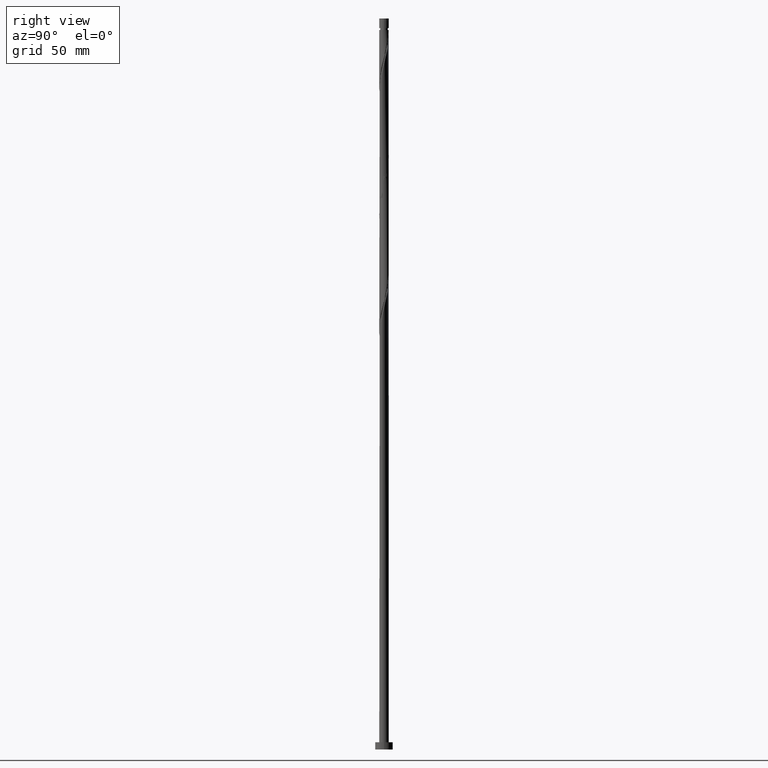
[diagram: clean part render]
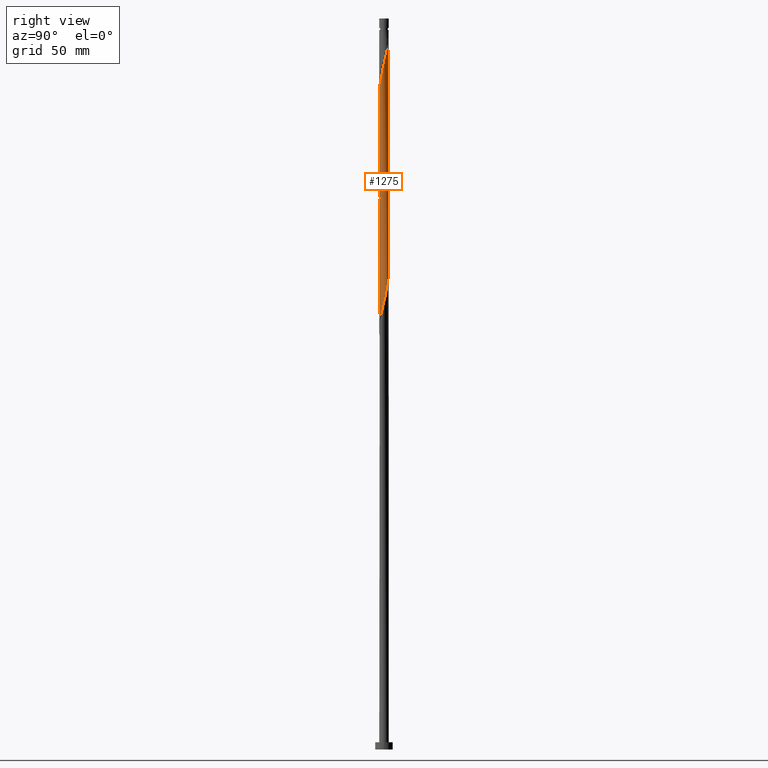
[diagram: same view with one face highlighted and labeled with its STEP entity id]
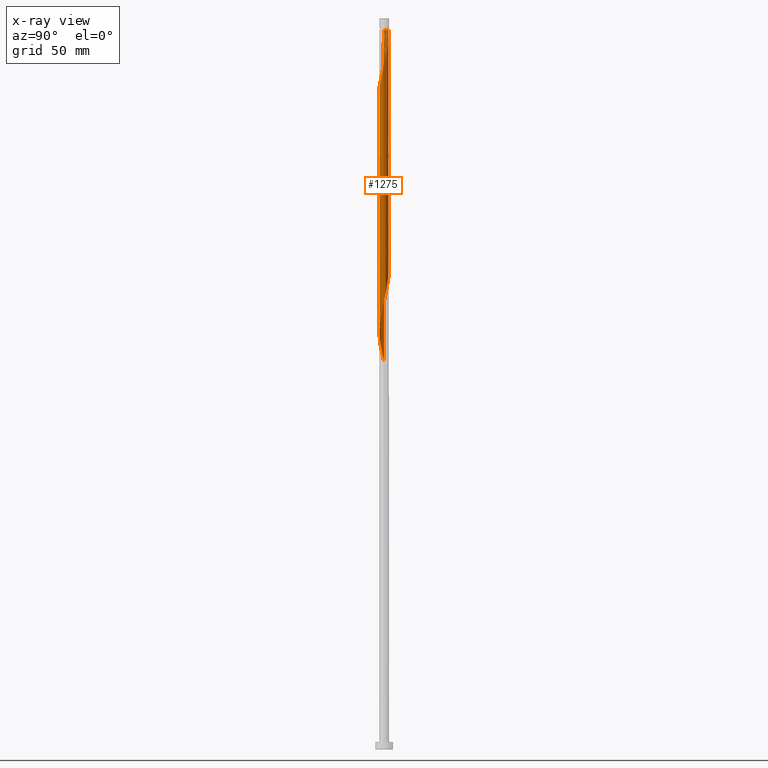
[diagram: x-ray of the same camera — body ghosted, the highlighted face saturated]
A machine part, right view. The second image highlights one B-rep face of the part: STEP entity #1275.
The next image is the same camera in x-ray: the body ghosted, the highlighted face saturated — about 0% of this face is hidden behind the body in this view.
In plain terms, the highlighted cylindrical surface (bore or boss wall) has radius 3.25 mm, axis along (-0, -0, -1).
Its self-contained STEP definition (entity closure, byte-faithful):
#2 = EDGE_CURVE ( 'NONE', #840, #1743, #1157, .T. ) ;
#30 = CARTESIAN_POINT ( 'NONE',  ( -0.3071423234190662210, 3.251249870675653408, 412.7072714568894867 ) ) ;
#40 = CARTESIAN_POINT ( 'NONE',  ( -3.184999999999998277, 0.6467418341193081899, 429.6343547902229147 ) ) ;
#60 = CARTESIAN_POINT ( 'NONE',  ( -3.249974190763924575, 0.01295219550383701346, 432.2385214568894867 ) ) ;
#67 = CARTESIAN_POINT ( 'NONE',  ( -3.249974190763924575, 0.01295219550383701346, 348.9051881235562860 ) ) ;
#72 = CARTESIAN_POINT ( 'NONE',  ( 0.9604369538118756600, 3.121301489147801256, 407.4989381235562860 ) ) ;
#73 = CARTESIAN_POINT ( 'NONE',  ( -2.997628045404656216, -1.255677546746574391, 432.2385214568895435 ) ) ;
#75 = EDGE_CURVE ( 'NONE', #952, #529, #401, .T. ) ;
#85 = CARTESIAN_POINT ( 'NONE',  ( 0.6467418341193088560, 3.184999999999998277, 325.4676881235562291 ) ) ;
#96 = CARTESIAN_POINT ( 'NONE',  ( 2.886224932046606906, 1.527961966161551111, 313.7489381235562291 ) ) ;
#100 = EDGE_CURVE ( 'NONE', #1021, #1805, #393, .T. ) ;
#110 = CARTESIAN_POINT ( 'NONE',  ( 3.007541226668794199, 1.231745010092412995, 312.4468547902228011 ) ) ;
#115 = CARTESIAN_POINT ( 'NONE',  ( 2.709450634661944690, -1.794819561496368898, 460.8843547902229147 ) ) ;
#125 =( BOUNDED_CURVE ( )  B_SPLINE_CURVE ( 2, ( #177, #333, #1281, #797, #1242, #1424, #1587, #1858, #214, #490, #368, #649, #1894, #943, #1873, #1754, #1734, #1415, #357, #1558, #498, #815, #667, #1099, #1269, #1884, #1722, #973, #548, #1023, #224, #1443, #1928, #566, #67, #1779, #687, #1139, #1149, #1160, #1761, #386, #1003, #1608, #395, #1639, #1617, #712, #403, #262, #852, #1462, #85, #1920, #1013, #1628, #1787, #253, #860, #414, #1471, #96, #110, #1328, #144, #1968, #1338, #1188, #1221, #923, #1197, #1656, #610, #742, #1678, #1082, #1431, #961, #1711, #343, #1119, #211, #951, #1742, #1566, #1855, #203, #321, #811, #194, #793, #781, #1096, #486, #1846, #330, #1238, #1421, #1393 ),
 .UNSPECIFIED., .F., .T. ) 
 B_SPLINE_CURVE_WITH_KNOTS ( ( 3, 2, 2, 2, 2, 2, 2, 2, 2, 2, 2, 2, 2, 2, 2, 2, 2, 2, 2, 2, 2, 2, 2, 2, 2, 2, 2, 2, 2, 2, 2, 2, 2, 2, 2, 2, 2, 2, 2, 2, 2, 2, 2, 2, 2, 2, 2, 2, 2, 3 ),
 ( 0.5545286902180870392, 0.5546875000000000000, 0.5625000000000000000, 0.5703125000000000000, 0.5781250000000000000, 0.5859375000000000000, 0.5937500000000000000, 0.6015625000000000000, 0.6093750000000000000, 0.6171875000000000000, 0.6250000000000000000, 0.6328125000000000000, 0.6406250000000000000, 0.6484375000000000000, 0.6562500000000000000, 0.6640625000000000000, 0.6718750000000000000, 0.6796875000000000000, 0.6875000000000000000, 0.6953125000000000000, 0.7031250000000000000, 0.7109375000000000000, 0.7187500000000000000, 0.7265625000000000000, 0.7343750000000000000, 0.7421875000000000000, 0.7500000000000000000, 0.7578125000000000000, 0.7656250000000000000, 0.7734375000000000000, 0.7812500000000000000, 0.7890625000000000000, 0.7968750000000000000, 0.8046875000000000000, 0.8125000000000000000, 0.8203125000000000000, 0.8281250000000000000, 0.8359375000000000000, 0.8437500000000000000, 0.8515625000000000000, 0.8593750000000000000, 0.8671875000000000000, 0.8750000000000000000, 0.8828125000000000000, 0.8906250000000000000, 0.8984375000000000000, 0.9062500000000000000, 0.9140625000000000000, 0.9218750000000000000, 0.9295286902180871502 ),
 .UNSPECIFIED. ) 
 CURVE ( )  GEOMETRIC_REPRESENTATION_ITEM ( )  RATIONAL_B_SPLINE_CURVE ( ( 0.9089165573359709871, 0.9090019243628758572, 0.9090909090909677914, 0.9047133878838736765, 0.9090909090909677914, 0.9047133878838736765, 0.9090909090909677914, 0.9047133878838736765, 0.9090909090909677914, 0.9047133878838736765, 0.9090909090909677914, 0.9047133878838736765, 0.9090909090909677914, 0.9047133878838736765, 0.9090909090909677914, 0.9047133878838736765, 0.9090909090909677914, 0.9047133878838736765, 0.9090909090909677914, 0.9047133878838736765, 0.9090909090909677914, 0.9047133878838736765, 0.9090909090909677914, 0.9047133878838736765, 0.9090909090909677914, 0.9047133878838736765, 0.9090909090909677914, 0.9047133878838736765, 0.9090909090909677914, 0.9047133878838736765, 0.9090909090909677914, 0.9047133878838736765, 0.9090909090909677914, 0.9047133878838736765, 0.9090909090909677914, 0.9047133878838736765, 0.9090909090909677914, 0.9047133878838736765, 0.9090909090909677914, 0.9047133878838736765, 0.9090909090909677914, 0.9047133878838736765, 0.9090909090909677914, 0.9047133878838736765, 0.9090909090909677914, 0.9047133878838736765, 0.9090909090909677914, 0.9047133878838736765, 0.9090909090909677914, 0.9047133878838736765, 0.9090909090909677914, 0.9047133878838736765, 0.9090909090909677914, 0.9047133878838736765, 0.9090909090909677914, 0.9047133878838736765, 0.9090909090909677914, 0.9047133878838736765, 0.9090909090909677914, 0.9047133878838736765, 0.9090909090909677914, 0.9047133878838736765, 0.9090909090909677914, 0.9047133878838736765, 0.9090909090909677914, 0.9047133878838736765, 0.9090909090909677914, 0.9047133878838736765, 0.9090909090909677914, 0.9047133878838736765, 0.9090909090909677914, 0.9047133878838736765, 0.9090909090909677914, 0.9047133878838736765, 0.9090909090909677914, 0.9047133878838736765, 0.9090909090909677914, 0.9047133878838736765, 0.9090909090909677914, 0.9047133878838736765, 0.9090909090909677914, 0.9047133878838736765, 0.9090909090909677914, 0.9047133878838736765, 0.9090909090909677914, 0.9047133878838736765, 0.9090909090909677914, 0.9047133878838736765, 0.9090909090909677914, 0.9047133878838736765, 0.9090909090909677914, 0.9047133878838736765, 0.9090909090909677914, 0.9047133878838736765, 0.9090909090909677914, 0.9047133878838736765, 0.9090909090909677914, 0.9048023726119654997, 0.9089165573359710981 ) ) 
 REPRESENTATION_ITEM ( '' )  );
#128 = CARTESIAN_POINT ( 'NONE',  ( 2.997628045404655328, 1.255677546746574613, 473.9051881235561154 ) ) ;
#138 = CARTESIAN_POINT ( 'NONE',  ( 1.231745010092417214, 3.007541226668799528, 484.3218547902228579 ) ) ;
#144 = CARTESIAN_POINT ( 'NONE',  ( 3.190053695983316562, 0.6213351887211725488, 309.8426881235563997 ) ) ;
#177 = CARTESIAN_POINT ( 'NONE',  ( 3.250000000000000000, 2.786425763563463458E-16, 390.6245517682197601 ) ) ;
#194 = CARTESIAN_POINT ( 'NONE',  ( -2.081798411207627986, -2.516163250565653708, 277.2906047902229147 ) ) ;
#203 = CARTESIAN_POINT ( 'NONE',  ( -1.255677546746574169, -2.997628045404650443, 281.1968547902229716 ) ) ;
#208 = CARTESIAN_POINT ( 'NONE',  ( -3.250000000000000000, 1.108978815598836682E-16, 432.2912184348865026 ) ) ;
#211 = CARTESIAN_POINT ( 'NONE',  ( 0.3071423234190654439, -3.251249870675654297, 287.7072714568894298 ) ) ;
#214 = CARTESIAN_POINT ( 'NONE',  ( 2.695058926113575115, -1.816358275444450054, 382.7593547902229716 ) ) ;
#224 = CARTESIAN_POINT ( 'NONE',  ( -3.007541226668793755, -1.231745010092413217, 354.1135214568896572 ) ) ;
#238 = DIRECTION ( 'NONE',  ( -0.000000000000000000, -0.000000000000000000, -1.000000000000000000 ) ) ;
#239 = CARTESIAN_POINT ( 'NONE',  ( -3.250000000000004885, 9.719873148483848127E-16, 426.9774911455594975 ) ) ;
#242 = DIRECTION ( 'NONE',  ( -0.000000000000000000, -0.000000000000000000, -1.000000000000000000 ) ) ;
#253 = CARTESIAN_POINT ( 'NONE',  ( 2.081798411207627986, 2.516163250565652820, 318.9572714568897140 ) ) ;
#260 = EDGE_LOOP ( 'NONE', ( #1864, #1422, #420, #1926, #1679, #754, #823, #1556 ) ) ;
#262 = CARTESIAN_POINT ( 'NONE',  ( -0.3071423234190662210, 3.251249870675653408, 329.3739381235562860 ) ) ;
#275 = FACE_OUTER_BOUND ( 'NONE', #260, .T. ) ;
#287 = CARTESIAN_POINT ( 'NONE',  ( 0.3071423234190679419, 3.251249870675660070, 488.2281047902229147 ) ) ;
#297 = CARTESIAN_POINT ( 'NONE',  ( 3.190053695983322335, -0.6213351887211754354, 466.0926881235561154 ) ) ;
#321 = CARTESIAN_POINT ( 'NONE',  ( -1.550918139681270569, -2.873954601661498742, 279.8947714568896572 ) ) ;
#330 = CARTESIAN_POINT ( 'NONE',  ( -3.128857521290980603, -0.9355280540232776554, 269.4781047902229716 ) ) ;
#333 = CARTESIAN_POINT ( 'NONE',  ( 3.249999999999999556, -0.006476123466344306349, 390.5981982137025170 ) ) ;
#338 = CARTESIAN_POINT ( 'NONE',  ( 3.250000000000000000, 2.786425763563463458E-16, 390.6245517682197601 ) ) ;
#343 = CARTESIAN_POINT ( 'NONE',  ( 0.9355280540232774333, -3.128857521290980603, 290.3114381235563428 ) ) ;
#357 = CARTESIAN_POINT ( 'NONE',  ( -0.01295219550383648090, -3.249974190763924575, 369.7385214568895435 ) ) ;
#360 = CARTESIAN_POINT ( 'NONE',  ( -2.873954601661499186, 1.550918139681270347, 425.7281047902229147 ) ) ;
#368 = CARTESIAN_POINT ( 'NONE',  ( 2.288920203698416422, -2.307237374242450123, 380.1551881235562860 ) ) ;
#372 = CARTESIAN_POINT ( 'NONE',  ( 0.6467418341193081899, -3.185000000000003606, 450.4676881235562860 ) ) ;
#386 = CARTESIAN_POINT ( 'NONE',  ( -2.516163250565653708, 2.081798411207627986, 339.7906047902228011 ) ) ;
#388 = VECTOR ( 'NONE', #1615, 1000.000000000000000 ) ;
#393 = LINE ( 'NONE', #1001, #1860 ) ;
#395 = CARTESIAN_POINT ( 'NONE',  ( -1.794819561496365123, 2.709450634661940693, 335.8843547902228579 ) ) ;
#401 = LINE ( 'NONE', #1770, #1544 ) ;
#403 = CARTESIAN_POINT ( 'NONE',  ( -0.6213351887211718827, 3.190053695983317006, 330.6760214568895435 ) ) ;
#414 = CARTESIAN_POINT ( 'NONE',  ( 2.532676337277275369, 2.061677156831177804, 316.3531047902229716 ) ) ;
#420 = ORIENTED_EDGE ( 'NONE', *, *, #527, .F. ) ;
#438 = CARTESIAN_POINT ( 'NONE',  ( 2.081798411207630206, -2.516163250565659038, 456.9781047902229147 ) ) ;
#448 = CARTESIAN_POINT ( 'NONE',  ( 3.250000000000000000, 2.786425763563463458E-16, 390.6245517682197601 ) ) ;
#479 = AXIS2_PLACEMENT_3D ( 'NONE', #1611, #238, #845 ) ;
#486 = CARTESIAN_POINT ( 'NONE',  ( -2.886224932046607794, -1.527961966161550889, 272.0822714568896004 ) ) ;
#490 = CARTESIAN_POINT ( 'NONE',  ( 2.516163250565652820, -2.081798411207627986, 381.4572714568895435 ) ) ;
#498 = CARTESIAN_POINT ( 'NONE',  ( -0.6467418341193085229, -3.184999999999998277, 367.1343547902228579 ) ) ;
#503 = CARTESIAN_POINT ( 'NONE',  ( -3.249999999999999112, 0.006476123466342445859, 432.2648648803691458 ) ) ;
#512 = DIRECTION ( 'NONE',  ( -0.000000000000000000, -0.000000000000000000, -1.000000000000000000 ) ) ;
#527 = EDGE_CURVE ( 'NONE', #1021, #674, #1647, .T. ) ;
#529 = VERTEX_POINT ( 'NONE', #448 ) ;
#533 = CARTESIAN_POINT ( 'NONE',  ( 0.3330467144267399981, 3.248698510852195298, 410.1031047902229147 ) ) ;
#542 = CARTESIAN_POINT ( 'NONE',  ( 3.190053695983316562, 0.6213351887211725488, 393.1760214568895435 ) ) ;
#548 = CARTESIAN_POINT ( 'NONE',  ( -2.709450634661940693, -1.794819561496364679, 356.7176881235562860 ) ) ;
#555 = CARTESIAN_POINT ( 'NONE',  ( -0.6213351887211736591, -3.190053695983322779, 445.2593547902229147 ) ) ;
#566 = CARTESIAN_POINT ( 'NONE',  ( -3.251249870675654297, -0.3071423234190656104, 350.2072714568896572 ) ) ;
#573 = CARTESIAN_POINT ( 'NONE',  ( 0.6213351887211757685, 3.190053695983322335, 486.9260214568896004 ) ) ;
#581 = CARTESIAN_POINT ( 'NONE',  ( 3.251249870675660070, -0.3071423234190678309, 467.3947714568896004 ) ) ;
#592 = CARTESIAN_POINT ( 'NONE',  ( 2.061677156831182245, 2.532676337277277590, 480.4156047902229147 ) ) ;
#604 = CARTESIAN_POINT ( 'NONE',  ( 0.9355280540232803199, 3.128857521290985932, 485.6239381235562291 ) ) ;
#610 = CARTESIAN_POINT ( 'NONE',  ( 2.695058926113575115, -1.816358275444450054, 299.4260214568895435 ) ) ;
#649 = CARTESIAN_POINT ( 'NONE',  ( 2.061677156831178248, -2.532676337277275369, 378.8531047902228579 ) ) ;
#652 = CARTESIAN_POINT ( 'NONE',  ( 0.01295219550383680182, 3.249974190763924575, 411.4051881235561723 ) ) ;
#667 = CARTESIAN_POINT ( 'NONE',  ( -1.255677546746574169, -2.997628045404650443, 364.5301881235561723 ) ) ;
#671 = CARTESIAN_POINT ( 'NONE',  ( 1.550918139681270791, 2.873954601661498742, 404.8947714568896572 ) ) ;
#674 = VERTEX_POINT ( 'NONE', #1930 ) ;
#681 = CARTESIAN_POINT ( 'NONE',  ( -2.288920203698416422, 2.307237374242450123, 421.8218547902229716 ) ) ;
#687 = CARTESIAN_POINT ( 'NONE',  ( -3.184999999999998277, 0.6467418341193081899, 346.3010214568896004 ) ) ;
#690 = CARTESIAN_POINT ( 'NONE',  ( 1.816358275444450276, 2.695058926113575115, 403.5926881235562860 ) ) ;
#699 = CARTESIAN_POINT ( 'NONE',  ( -1.527961966161554663, -2.886224932046612679, 441.3531047902229716 ) ) ;
#712 = CARTESIAN_POINT ( 'NONE',  ( -0.9355280540232774333, 3.128857521290980603, 331.9781047902229716 ) ) ;
#716 = CARTESIAN_POINT ( 'NONE',  ( -1.794819561496368454, -2.709450634661944690, 440.0510214568896572 ) ) ;
#725 = CARTESIAN_POINT ( 'NONE',  ( 3.007541226668799528, -1.231745010092417214, 463.4885214568895435 ) ) ;
#734 = CARTESIAN_POINT ( 'NONE',  ( 2.873954601661504071, 1.550918139681272123, 475.2072714568896004 ) ) ;
#742 = CARTESIAN_POINT ( 'NONE',  ( 2.516163250565652820, -2.081798411207627986, 298.1239381235563428 ) ) ;
#754 = ORIENTED_EDGE ( 'NONE', *, *, #75, .F. ) ;
#766 = CARTESIAN_POINT ( 'NONE',  ( 3.250000000000000444, 3.980102097228898231E-16, 492.1343547902229147 ) ) ;
#781 = CARTESIAN_POINT ( 'NONE',  ( -2.532676337277274481, -2.061677156831178692, 274.6864381235562860 ) ) ;
#793 = CARTESIAN_POINT ( 'NONE',  ( -2.307237374242450123, -2.288920203698416866, 275.9885214568895435 ) ) ;
#797 = CARTESIAN_POINT ( 'NONE',  ( 3.248698510852195298, -0.3330467144267416635, 389.2697714568895435 ) ) ;
#808 = CARTESIAN_POINT ( 'NONE',  ( 2.886224932046606906, 1.527961966161551111, 397.0822714568895435 ) ) ;
#811 = CARTESIAN_POINT ( 'NONE',  ( -1.816358275444448944, -2.695058926113576003, 278.5926881235562860 ) ) ;
#815 = CARTESIAN_POINT ( 'NONE',  ( -0.9604369538118765481, -3.121301489147800368, 365.8322714568894867 ) ) ;
#818 = CARTESIAN_POINT ( 'NONE',  ( -0.9355280540232774333, 3.128857521290980603, 415.3114381235562291 ) ) ;
#823 = ORIENTED_EDGE ( 'NONE', *, *, #75, .T. ) ;
#831 = AXIS2_PLACEMENT_3D ( 'NONE', #1878, #512, #1115 ) ;
#835 = CARTESIAN_POINT ( 'NONE',  ( -2.997628045404650443, 1.255677546746573281, 427.0301881235562860 ) ) ;
#840 = VERTEX_POINT ( 'NONE', #1958 ) ;
#845 = DIRECTION ( 'NONE',  ( -1.000000000000000000, 0.000000000000000000, 0.000000000000000000 ) ) ;
#852 = CARTESIAN_POINT ( 'NONE',  ( 0.01295219550383680182, 3.249974190763924575, 328.0718547902228579 ) ) ;
#860 = CARTESIAN_POINT ( 'NONE',  ( 2.307237374242450123, 2.288920203698416422, 317.6551881235562860 ) ) ;
#865 = CARTESIAN_POINT ( 'NONE',  ( -3.121301489147807917, -0.9604369538118774363, 430.9364381235562291 ) ) ;
#868 = DIRECTION ( 'NONE',  ( -0.000000000000000000, -0.000000000000000000, -1.000000000000000000 ) ) ;
#886 = CARTESIAN_POINT ( 'NONE',  ( 2.886224932046612235, -1.527961966161555774, 462.1864381235562860 ) ) ;
#899 = CARTESIAN_POINT ( 'NONE',  ( -0.01295219550383478260, 3.249974190763929904, 489.5301881235562291 ) ) ;
#923 = CARTESIAN_POINT ( 'NONE',  ( 3.121301489147801256, -0.9604369538118754379, 303.3322714568895435 ) ) ;
#941 =( BOUNDED_CURVE ( )  B_SPLINE_CURVE ( 2, ( #208, #503, #60, #1407, #40, #1738, #835, #360, #1572, #1562, #681, #1285, #1908, #1262, #1600, #818, #1898, #30, #652, #533, #1446, #72, #1427, #671, #690, #1254, #1135, #1273, #1757, #808, #1297, #1727, #542, #1887, #338 ),
 .UNSPECIFIED., .F., .T. ) 
 B_SPLINE_CURVE_WITH_KNOTS ( ( 3, 2, 2, 2, 2, 2, 2, 2, 2, 2, 2, 2, 2, 2, 2, 2, 2, 3 ),
 ( 0.4295286902180869837, 0.4296875000000000000, 0.4375000000000000000, 0.4453125000000000000, 0.4531250000000000000, 0.4609375000000000000, 0.4687500000000000000, 0.4765625000000000000, 0.4843750000000000000, 0.4921875000000000000, 0.5000000000000000000, 0.5078125000000000000, 0.5156250000000000000, 0.5234375000000000000, 0.5312500000000000000, 0.5390625000000000000, 0.5468750000000000000, 0.5545286902180870392 ),
 .UNSPECIFIED. ) 
 CURVE ( )  GEOMETRIC_REPRESENTATION_ITEM ( )  RATIONAL_B_SPLINE_CURVE ( ( 0.9089165573359709871, 0.9090019243628758572, 0.9090909090909677914, 0.9047133878838736765, 0.9090909090909677914, 0.9047133878838736765, 0.9090909090909677914, 0.9047133878838736765, 0.9090909090909677914, 0.9047133878838736765, 0.9090909090909677914, 0.9047133878838736765, 0.9090909090909677914, 0.9047133878838736765, 0.9090909090909677914, 0.9047133878838736765, 0.9090909090909677914, 0.9047133878838736765, 0.9090909090909677914, 0.9047133878838736765, 0.9090909090909677914, 0.9047133878838736765, 0.9090909090909677914, 0.9047133878838736765, 0.9090909090909677914, 0.9047133878838736765, 0.9090909090909677914, 0.9047133878838736765, 0.9090909090909677914, 0.9047133878838736765, 0.9090909090909677914, 0.9047133878838736765, 0.9090909090909677914, 0.9048023726119656107, 0.9089165573359709871 ) ) 
 REPRESENTATION_ITEM ( '' )  );
#943 = CARTESIAN_POINT ( 'NONE',  ( 1.527961966161550222, -2.886224932046607794, 376.2489381235562860 ) ) ;
#951 = CARTESIAN_POINT ( 'NONE',  ( -0.01295219550383648090, -3.249974190763924575, 286.4051881235562291 ) ) ;
#952 = VERTEX_POINT ( 'NONE', #766 ) ;
#961 = CARTESIAN_POINT ( 'NONE',  ( 1.527961966161550222, -2.886224932046607794, 292.9156047902229147 ) ) ;
#973 = CARTESIAN_POINT ( 'NONE',  ( -2.532676337277274481, -2.061677156831178692, 358.0197714568896004 ) ) ;
#976 = CARTESIAN_POINT ( 'NONE',  ( 0.9604369538118772143, -3.121301489147807917, 451.7697714568897140 ) ) ;
#996 = CARTESIAN_POINT ( 'NONE',  ( -2.288920203698420863, -2.307237374242452788, 437.4468547902229716 ) ) ;
#1001 = CARTESIAN_POINT ( 'NONE',  ( -3.250000000000000444, 0.000000000000000000, 500.0000000000000000 ) ) ;
#1003 = CARTESIAN_POINT ( 'NONE',  ( -2.288920203698416422, 2.307237374242450123, 338.4885214568895435 ) ) ;
#1007 = CARTESIAN_POINT ( 'NONE',  ( -2.061677156831183133, -2.532676337277277590, 438.7489381235562860 ) ) ;
#1013 = CARTESIAN_POINT ( 'NONE',  ( 1.255677546746574613, 2.997628045404649555, 322.8635214568895435 ) ) ;
#1021 = VERTEX_POINT ( 'NONE', #1323 ) ;
#1023 = CARTESIAN_POINT ( 'NONE',  ( -2.886224932046607794, -1.527961966161550889, 355.4156047902229147 ) ) ;
#1045 = CARTESIAN_POINT ( 'NONE',  ( 3.248698510852201071, 0.3330467144267406088, 469.9989381235562860 ) ) ;
#1082 = CARTESIAN_POINT ( 'NONE',  ( 2.061677156831178248, -2.532676337277275369, 295.5197714568896004 ) ) ;
#1096 = CARTESIAN_POINT ( 'NONE',  ( -2.709450634661940693, -1.794819561496364679, 273.3843547902229147 ) ) ;
#1099 = CARTESIAN_POINT ( 'NONE',  ( -1.550918139681270569, -2.873954601661498742, 363.2281047902228579 ) ) ;
#1115 = DIRECTION ( 'NONE',  ( -1.000000000000000000, 0.000000000000000000, 0.000000000000000000 ) ) ;
#1119 = CARTESIAN_POINT ( 'NONE',  ( 0.6213351887211716607, -3.190053695983317450, 289.0093547902229147 ) ) ;
#1126 = CARTESIAN_POINT ( 'NONE',  ( 0.3330467144267392210, -3.248698510852201071, 449.1656047902229716 ) ) ;
#1130 = EDGE_CURVE ( 'NONE', #1743, #529, #941, .T. ) ;
#1135 = CARTESIAN_POINT ( 'NONE',  ( 2.307237374242450123, 2.288920203698416422, 400.9885214568896572 ) ) ;
#1139 = CARTESIAN_POINT ( 'NONE',  ( -3.121301489147800368, 0.9604369538118764371, 344.9989381235563428 ) ) ;
#1144 = CARTESIAN_POINT ( 'NONE',  ( -3.248698510852201071, -0.3330467144267394430, 428.3322714568896572 ) ) ;
#1149 = CARTESIAN_POINT ( 'NONE',  ( -2.997628045404650443, 1.255677546746573281, 343.6968547902229147 ) ) ;
#1153 = CARTESIAN_POINT ( 'NONE',  ( -0.3071423234190676088, -3.251249870675660070, 446.5614381235561723 ) ) ;
#1157 = LINE ( 'NONE', #1307, #388 ) ;
#1160 = CARTESIAN_POINT ( 'NONE',  ( -2.873954601661499186, 1.550918139681270347, 342.3947714568896004 ) ) ;
#1172 = CARTESIAN_POINT ( 'NONE',  ( 1.550918139681272345, -2.873954601661504071, 454.3739381235562860 ) ) ;
#1188 = CARTESIAN_POINT ( 'NONE',  ( 3.248698510852195298, -0.3330467144267416635, 305.9364381235562860 ) ) ;
#1193 = CARTESIAN_POINT ( 'NONE',  ( 1.794819561496368898, 2.709450634661944690, 481.7176881235561154 ) ) ;
#1197 = CARTESIAN_POINT ( 'NONE',  ( 2.997628045404649555, -1.255677546746574169, 302.0301881235562860 ) ) ;
#1199 = EDGE_CURVE ( 'NONE', #840, #674, #1706, .T. ) ;
#1204 = CARTESIAN_POINT ( 'NONE',  ( -0.6467418341193960085, 3.185000000000880682, 492.1343547902228579 ) ) ;
#1221 = CARTESIAN_POINT ( 'NONE',  ( 3.184999999999998277, -0.6467418341193088560, 304.6343547902229147 ) ) ;
#1238 = CARTESIAN_POINT ( 'NONE',  ( -3.190053695983317006, -0.6213351887211716607, 268.1760214568895435 ) ) ;
#1242 = CARTESIAN_POINT ( 'NONE',  ( 3.184999999999998277, -0.6467418341193088560, 387.9676881235561723 ) ) ;
#1254 = CARTESIAN_POINT ( 'NONE',  ( 2.081798411207627986, 2.516163250565652820, 402.2906047902228579 ) ) ;
#1262 = CARTESIAN_POINT ( 'NONE',  ( -1.527961966161551111, 2.886224932046607350, 417.9156047902228579 ) ) ;
#1269 = CARTESIAN_POINT ( 'NONE',  ( -1.816358275444448944, -2.695058926113576003, 361.9260214568895435 ) ) ;
#1273 = CARTESIAN_POINT ( 'NONE',  ( 2.532676337277275369, 2.061677156831177804, 399.6864381235562860 ) ) ;
#1275 = ADVANCED_FACE ( 'NONE', ( #275 ), #1496, .T. ) ;
#1281 = CARTESIAN_POINT ( 'NONE',  ( 3.249974190763924575, -0.01295219550383659365, 390.5718547902228579 ) ) ;
#1285 = CARTESIAN_POINT ( 'NONE',  ( -2.061677156831178692, 2.532676337277274481, 420.5197714568895435 ) ) ;
#1297 = CARTESIAN_POINT ( 'NONE',  ( 3.007541226668794199, 1.231745010092412995, 395.7801881235562291 ) ) ;
#1307 = CARTESIAN_POINT ( 'NONE',  ( -3.250000000000000444, 0.000000000000000000, 500.0000000000000000 ) ) ;
#1312 = CARTESIAN_POINT ( 'NONE',  ( -2.516163250565659038, -2.081798411207630206, 436.1447714568896572 ) ) ;
#1320 = CARTESIAN_POINT ( 'NONE',  ( 2.288920203698421307, 2.307237374242452788, 479.1135214568894867 ) ) ;
#1323 = CARTESIAN_POINT ( 'NONE',  ( -3.250000000000004885, 9.719873148483848127E-16, 426.9774911455594975 ) ) ;
#1328 = CARTESIAN_POINT ( 'NONE',  ( 3.128857521290980603, 0.9355280540232772113, 311.1447714568896004 ) ) ;
#1338 = CARTESIAN_POINT ( 'NONE',  ( 3.249974190763924575, -0.01295219550383659365, 307.2385214568896004 ) ) ;
#1346 = CARTESIAN_POINT ( 'NONE',  ( 2.516163250565659038, 2.081798411207630206, 477.8114381235562860 ) ) ;
#1356 = CARTESIAN_POINT ( 'NONE',  ( 3.249974190763929904, 0.01295219550383489189, 468.6968547902228011 ) ) ;
#1393 = CARTESIAN_POINT ( 'NONE',  ( -3.250000000000000000, 1.108978815598836682E-16, 265.6245517682197601 ) ) ;
#1407 = CARTESIAN_POINT ( 'NONE',  ( -3.248698510852195298, 0.3330467144267397761, 430.9364381235562291 ) ) ;
#1415 = CARTESIAN_POINT ( 'NONE',  ( 0.3071423234190654439, -3.251249870675654297, 371.0406047902229716 ) ) ;
#1421 = CARTESIAN_POINT ( 'NONE',  ( -3.250000000000000000, -0.3135593985191882371, 266.9005318736358845 ) ) ;
#1422 = ORIENTED_EDGE ( 'NONE', *, *, #1199, .T. ) ;
#1424 = CARTESIAN_POINT ( 'NONE',  ( 3.121301489147801256, -0.9604369538118754379, 386.6656047902229716 ) ) ;
#1427 = CARTESIAN_POINT ( 'NONE',  ( 1.255677546746574613, 2.997628045404649555, 406.1968547902229716 ) ) ;
#1431 = CARTESIAN_POINT ( 'NONE',  ( 1.794819561496364457, -2.709450634661941137, 294.2176881235562291 ) ) ;
#1443 = CARTESIAN_POINT ( 'NONE',  ( -3.128857521290980603, -0.9355280540232776554, 352.8114381235563428 ) ) ;
#1446 = CARTESIAN_POINT ( 'NONE',  ( 0.6467418341193088560, 3.184999999999998277, 408.8010214568895435 ) ) ;
#1456 = CARTESIAN_POINT ( 'NONE',  ( -3.249974190763930348, -0.01295219550383595354, 427.0301881235563428 ) ) ;
#1462 = CARTESIAN_POINT ( 'NONE',  ( 0.3330467144267399981, 3.248698510852195298, 326.7697714568896004 ) ) ;
#1471 = CARTESIAN_POINT ( 'NONE',  ( 2.709450634661941137, 1.794819561496364235, 315.0510214568896004 ) ) ;
#1475 = CARTESIAN_POINT ( 'NONE',  ( -2.873954601661504071, -1.550918139681272345, 433.5406047902229147 ) ) ;
#1496 = CYLINDRICAL_SURFACE ( 'NONE', #479, 3.250000000000000444 ) ;
#1510 = CARTESIAN_POINT ( 'NONE',  ( -0.3330467144267357793, 3.248698510852201071, 490.8322714568897140 ) ) ;
#1520 = CARTESIAN_POINT ( 'NONE',  ( 3.185000000000003606, 0.6467418341193080789, 471.3010214568896004 ) ) ;
#1542 = CARTESIAN_POINT ( 'NONE',  ( -3.250000000000000000, 1.108978815598836682E-16, 432.2912184348864457 ) ) ;
#1544 = VECTOR ( 'NONE', #868, 1000.000000000000000 ) ;
#1556 = ORIENTED_EDGE ( 'NONE', *, *, #1130, .F. ) ;
#1558 = CARTESIAN_POINT ( 'NONE',  ( -0.3330467144267399981, -3.248698510852195298, 368.4364381235563997 ) ) ;
#1562 = CARTESIAN_POINT ( 'NONE',  ( -2.516163250565653708, 2.081798411207627986, 423.1239381235563428 ) ) ;
#1566 = CARTESIAN_POINT ( 'NONE',  ( -0.6467418341193085229, -3.184999999999998277, 283.8010214568896004 ) ) ;
#1572 = CARTESIAN_POINT ( 'NONE',  ( -2.695058926113576003, 1.816358275444448722, 424.4260214568896004 ) ) ;
#1587 = CARTESIAN_POINT ( 'NONE',  ( 2.997628045404649555, -1.255677546746574169, 385.3635214568895435 ) ) ;
#1588 = EDGE_CURVE ( 'NONE', #529, #1805, #125, .T. ) ;
#1600 = CARTESIAN_POINT ( 'NONE',  ( -1.231745010092414105, 3.007541226668793755, 416.6135214568896004 ) ) ;
#1608 = CARTESIAN_POINT ( 'NONE',  ( -2.061677156831178692, 2.532676337277274481, 337.1864381235563428 ) ) ;
#1611 = CARTESIAN_POINT ( 'NONE',  ( 0.000000000000000000, 0.000000000000000000, 500.0000000000000000 ) ) ;
#1615 = DIRECTION ( 'NONE',  ( -0.000000000000000000, -0.000000000000000000, -1.000000000000000000 ) ) ;
#1617 = CARTESIAN_POINT ( 'NONE',  ( -1.231745010092414105, 3.007541226668793755, 333.2801881235563428 ) ) ;
#1628 = CARTESIAN_POINT ( 'NONE',  ( 1.550918139681270791, 2.873954601661498742, 321.5614381235562291 ) ) ;
#1631 = CARTESIAN_POINT ( 'NONE',  ( -3.250000000000005329, -0.006476123466334582357, 427.0038447000767405 ) ) ;
#1639 = CARTESIAN_POINT ( 'NONE',  ( -1.527961966161551111, 2.886224932046607350, 334.5822714568896572 ) ) ;
#1643 = CARTESIAN_POINT ( 'NONE',  ( 2.307237374242453232, -2.288920203698421307, 458.2801881235563428 ) ) ;
#1647 =( BOUNDED_CURVE ( )  B_SPLINE_CURVE ( 2, ( #239, #1631, #1456, #1144, #1766, #865, #73, #1475, #1750, #1312, #996, #1007, #716, #699, #1923, #1916, #555, #1153, #1890, #1126, #372, #976, #1790, #1172, #1801, #438, #1643, #1662, #115, #886, #725, #1943, #297, #581, #1356, #1045, #1520, #1651, #128, #734, #1974, #1346, #1320, #592, #1193, #1811, #138, #604, #573, #287, #899, #1510, #1204 ),
 .UNSPECIFIED., .F., .T. ) 
 B_SPLINE_CURVE_WITH_KNOTS ( ( 3, 2, 2, 2, 2, 2, 2, 2, 2, 2, 2, 2, 2, 2, 2, 2, 2, 2, 2, 2, 2, 2, 2, 2, 2, 2, 3 ),
 ( 0.5545286902180868172, 0.5546875000000000000, 0.5625000000000000000, 0.5703125000000000000, 0.5781250000000000000, 0.5859375000000000000, 0.5937500000000000000, 0.6015625000000000000, 0.6093750000000000000, 0.6171875000000000000, 0.6250000000000000000, 0.6328125000000000000, 0.6406250000000000000, 0.6484375000000000000, 0.6562500000000000000, 0.6640625000000000000, 0.6718749999999998890, 0.6796874999999998890, 0.6874999999999998890, 0.6953124999999998890, 0.7031249999999998890, 0.7109374999999998890, 0.7187499999999998890, 0.7265624999999998890, 0.7343749999999998890, 0.7421874999999998890, 0.7499999999999998890 ),
 .UNSPECIFIED. ) 
 CURVE ( )  GEOMETRIC_REPRESENTATION_ITEM ( )  RATIONAL_B_SPLINE_CURVE ( ( 0.9089165573359776484, 0.9090019243628826295, 0.9090909090909746748, 0.9047133878838805598, 0.9090909090909746748, 0.9047133878838805598, 0.9090909090909746748, 0.9047133878838805598, 0.9090909090909746748, 0.9047133878838805598, 0.9090909090909746748, 0.9047133878838805598, 0.9090909090909746748, 0.9047133878838805598, 0.9090909090909746748, 0.9047133878838805598, 0.9090909090909746748, 0.9047133878838805598, 0.9090909090909746748, 0.9047133878838805598, 0.9090909090909746748, 0.9047133878838805598, 0.9090909090909746748, 0.9047133878838805598, 0.9090909090909746748, 0.9047133878838805598, 0.9090909090909746748, 0.9047133878838805598, 0.9090909090909746748, 0.9047133878838805598, 0.9090909090909746748, 0.9047133878838805598, 0.9090909090909746748, 0.9047133878838805598, 0.9090909090909746748, 0.9047133878838805598, 0.9090909090909746748, 0.9047133878838805598, 0.9090909090909746748, 0.9047133878838805598, 0.9090909090909746748, 0.9047133878838805598, 0.9090909090909746748, 0.9047133878838805598, 0.9090909090909746748, 0.9047133878838805598, 0.9090909090909746748, 0.9047133878838805598, 0.9090909090909746748, 0.9047133878838805598, 0.9090909090909746748, 0.9047133878838805598, 0.9090909090909746748 ) ) 
 REPRESENTATION_ITEM ( '' )  );
#1651 = CARTESIAN_POINT ( 'NONE',  ( 3.121301489147807917, 0.9604369538118755489, 472.6031047902229716 ) ) ;
#1656 = CARTESIAN_POINT ( 'NONE',  ( 2.873954601661498742, -1.550918139681270791, 300.7281047902228579 ) ) ;
#1662 = CARTESIAN_POINT ( 'NONE',  ( 2.532676337277277145, -2.061677156831183133, 459.5822714568895435 ) ) ;
#1678 = CARTESIAN_POINT ( 'NONE',  ( 2.288920203698416422, -2.307237374242450123, 296.8218547902229716 ) ) ;
#1679 = ORIENTED_EDGE ( 'NONE', *, *, #1588, .F. ) ;
#1706 = CIRCLE ( 'NONE', #831, 3.249999999999952482 ) ;
#1711 = CARTESIAN_POINT ( 'NONE',  ( 1.231745010092413217, -3.007541226668794199, 291.6135214568895435 ) ) ;
#1722 = CARTESIAN_POINT ( 'NONE',  ( -2.307237374242450123, -2.288920203698416866, 359.3218547902228579 ) ) ;
#1723 = CARTESIAN_POINT ( 'NONE',  ( -3.250000000000000000, 1.108978815598836682E-16, 265.6245517682197601 ) ) ;
#1727 = CARTESIAN_POINT ( 'NONE',  ( 3.128857521290980603, 0.9355280540232772113, 394.4781047902229147 ) ) ;
#1734 = CARTESIAN_POINT ( 'NONE',  ( 0.6213351887211716607, -3.190053695983317450, 372.3426881235561723 ) ) ;
#1738 = CARTESIAN_POINT ( 'NONE',  ( -3.121301489147800368, 0.9604369538118764371, 428.3322714568896004 ) ) ;
#1742 = CARTESIAN_POINT ( 'NONE',  ( -0.3330467144267399981, -3.248698510852195298, 285.1031047902229147 ) ) ;
#1743 = VERTEX_POINT ( 'NONE', #1542 ) ;
#1750 = CARTESIAN_POINT ( 'NONE',  ( -2.695058926113581776, -1.816358275444451165, 434.8426881235563428 ) ) ;
#1754 = CARTESIAN_POINT ( 'NONE',  ( 0.9355280540232774333, -3.128857521290980603, 373.6447714568896004 ) ) ;
#1757 = CARTESIAN_POINT ( 'NONE',  ( 2.709450634661941137, 1.794819561496364235, 398.3843547902229147 ) ) ;
#1761 = CARTESIAN_POINT ( 'NONE',  ( -2.695058926113576003, 1.816358275444448722, 341.0926881235562860 ) ) ;
#1766 = CARTESIAN_POINT ( 'NONE',  ( -3.185000000000003606, -0.6467418341193084119, 429.6343547902229147 ) ) ;
#1770 = CARTESIAN_POINT ( 'NONE',  ( 3.250000000000000444, 3.980102097228898231E-16, 500.0000000000000000 ) ) ;
#1779 = CARTESIAN_POINT ( 'NONE',  ( -3.248698510852195298, 0.3330467144267397761, 347.6031047902228579 ) ) ;
#1787 = CARTESIAN_POINT ( 'NONE',  ( 1.816358275444450276, 2.695058926113575115, 320.2593547902228011 ) ) ;
#1790 = CARTESIAN_POINT ( 'NONE',  ( 1.255677546746574835, -2.997628045404655328, 453.0718547902228579 ) ) ;
#1801 = CARTESIAN_POINT ( 'NONE',  ( 1.816358275444450943, -2.695058926113582221, 455.6760214568896004 ) ) ;
#1805 = VERTEX_POINT ( 'NONE', #1723 ) ;
#1811 = CARTESIAN_POINT ( 'NONE',  ( 1.527961966161555774, 2.886224932046612235, 483.0197714568895435 ) ) ;
#1846 = CARTESIAN_POINT ( 'NONE',  ( -3.007541226668793755, -1.231745010092413217, 270.7801881235562291 ) ) ;
#1855 = CARTESIAN_POINT ( 'NONE',  ( -0.9604369538118765481, -3.121301489147800368, 282.4989381235562860 ) ) ;
#1858 = CARTESIAN_POINT ( 'NONE',  ( 2.873954601661498742, -1.550918139681270791, 384.0614381235562860 ) ) ;
#1860 = VECTOR ( 'NONE', #242, 1000.000000000000000 ) ;
#1864 = ORIENTED_EDGE ( 'NONE', *, *, #2, .F. ) ;
#1873 = CARTESIAN_POINT ( 'NONE',  ( 1.231745010092413217, -3.007541226668794199, 374.9468547902229147 ) ) ;
#1878 = CARTESIAN_POINT ( 'NONE',  ( 0.000000000000000000, 0.000000000000000000, 492.1343547902229147 ) ) ;
#1884 = CARTESIAN_POINT ( 'NONE',  ( -2.081798411207627986, -2.516163250565653708, 360.6239381235562860 ) ) ;
#1887 = CARTESIAN_POINT ( 'NONE',  ( 3.249999999999998668, 0.3135593985191923450, 391.9005318736358277 ) ) ;
#1890 = CARTESIAN_POINT ( 'NONE',  ( 0.01295219550383510179, -3.249974190763930348, 447.8635214568896004 ) ) ;
#1894 = CARTESIAN_POINT ( 'NONE',  ( 1.794819561496364457, -2.709450634661941137, 377.5510214568897140 ) ) ;
#1898 = CARTESIAN_POINT ( 'NONE',  ( -0.6213351887211718827, 3.190053695983317006, 414.0093547902228579 ) ) ;
#1908 = CARTESIAN_POINT ( 'NONE',  ( -1.794819561496365123, 2.709450634661940693, 419.2176881235562291 ) ) ;
#1916 = CARTESIAN_POINT ( 'NONE',  ( -0.9355280540232800979, -3.128857521290985932, 443.9572714568895435 ) ) ;
#1920 = CARTESIAN_POINT ( 'NONE',  ( 0.9604369538118756600, 3.121301489147801256, 324.1656047902228579 ) ) ;
#1923 = CARTESIAN_POINT ( 'NONE',  ( -1.231745010092417214, -3.007541226668799972, 442.6551881235562291 ) ) ;
#1926 = ORIENTED_EDGE ( 'NONE', *, *, #100, .T. ) ;
#1928 = CARTESIAN_POINT ( 'NONE',  ( -3.190053695983317006, -0.6213351887211716607, 351.5093547902229147 ) ) ;
#1930 = CARTESIAN_POINT ( 'NONE',  ( -0.6467418341193960085, 3.185000000000880682, 492.1343547902228011 ) ) ;
#1943 = CARTESIAN_POINT ( 'NONE',  ( 3.128857521290985932, -0.9355280540232800979, 464.7906047902230284 ) ) ;
#1958 = CARTESIAN_POINT ( 'NONE',  ( -3.249999999999952482, 0.000000000000000000, 492.1343547902229147 ) ) ;
#1968 = CARTESIAN_POINT ( 'NONE',  ( 3.251249870675654297, 0.3071423234190652218, 308.5406047902229147 ) ) ;
#1974 = CARTESIAN_POINT ( 'NONE',  ( 2.695058926113581776, 1.816358275444452053, 476.5093547902228579 ) ) ;